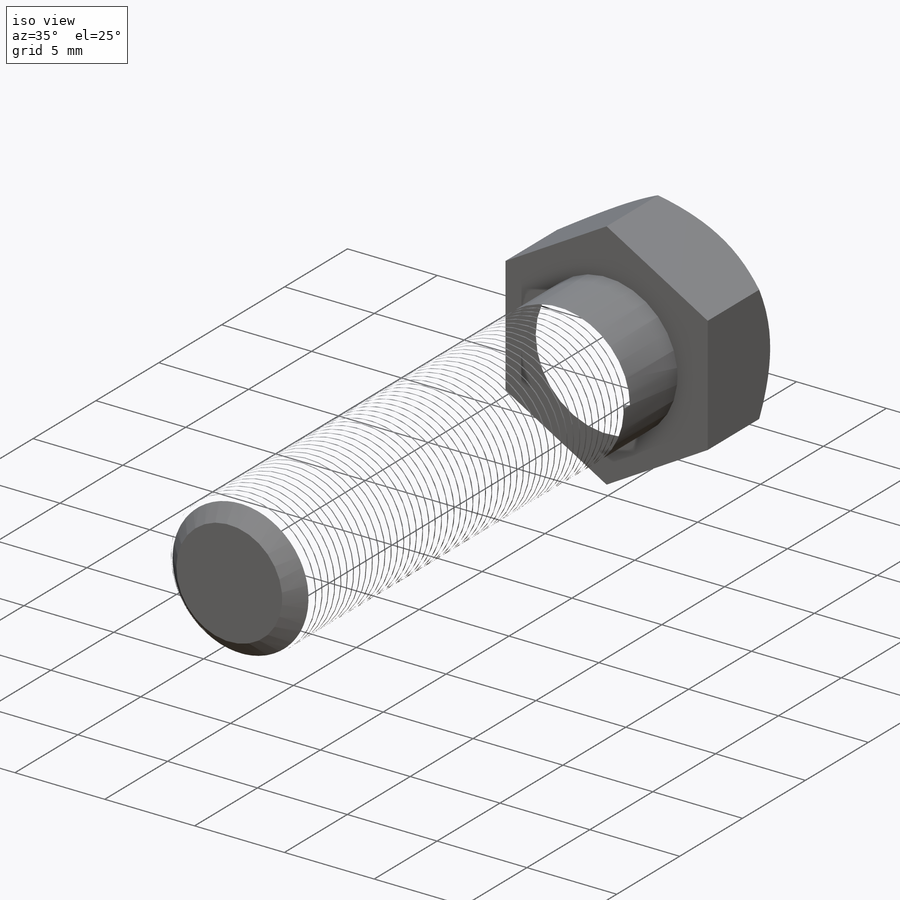
[diagram: iso view]
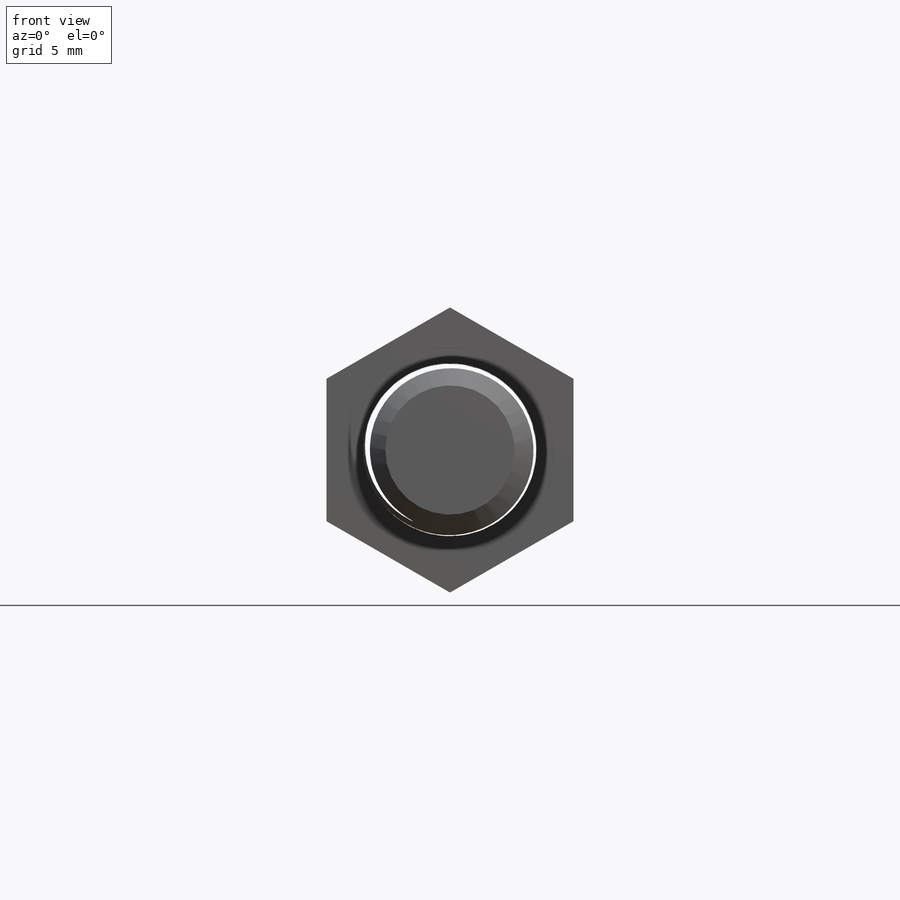
[diagram: front view]
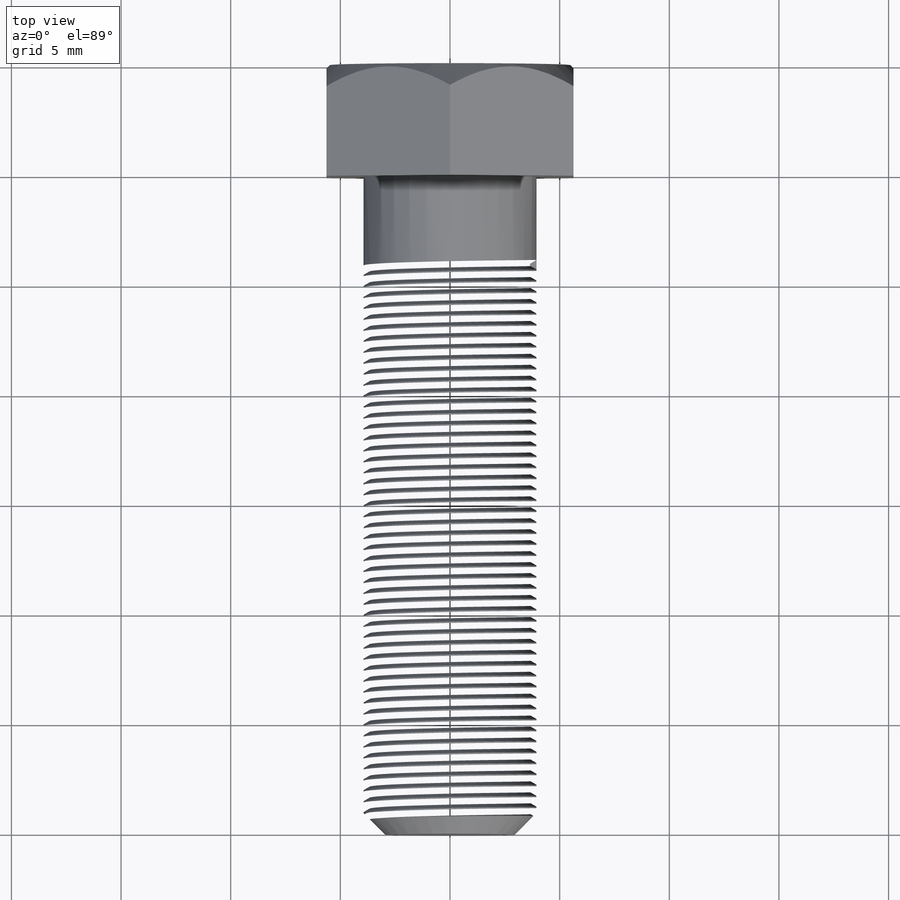
[diagram: top view]
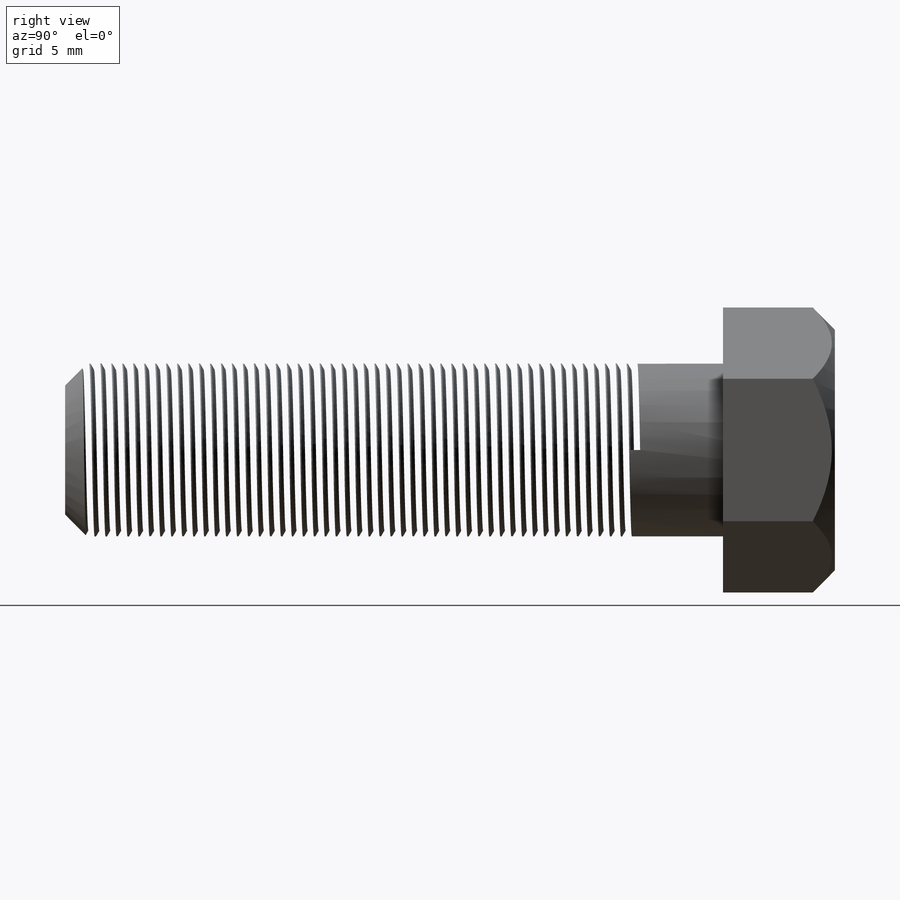
[diagram: right view]
SOLIDWORKS PART (.sldprt)
format: sldprt  version: not decoded by parser v0  size: 2,156,032 bytes
history: native  units: mm
features: sketch x6, plane x3, extrude x2, chamfer x2, material x1, cut_extrude x1, helix x1, sweep x1 (+8 scaffold rows collapsed)
feature tree (25):
  scaffold x8  (default folders/planes/origin — collapsed)
  material  "Material <sin especificar>"
  plane  "Alzado"
  plane  "Planta"
  plane  "Vista lateral"
  sketch  "Croquis2"  dims[D=13.0mm]
  extrude  "Saliente-Extruir1"  Depth=5.1mm H=5.1mm
  chamfer  "Chaflán1"  Distance=1.0062mm Angle=45deg
  sketch  "Croquis3"
  cut_extrude  "Cortar-Extruir1"  [1 undecoded]
  sketch  "Croquis4"  dims[Dr=~7.89175mm]
  extrude  "Saliente-Extruir2"  Depth=30mm L=30mm
  sketch  "Croquis5"  dims[Dint=7.134mm]
  helix  "Hélice/Espiral1"  Pitch=26mm Paso=0.5mm
  sketch  "Croquis6"  dims[Dn=8.0mm]
  chamfer  "Chaflán2"  Distance=1mm Angle=45deg
  sketch  "Croquis7"  dims[Paso=0.499mm Hp=~0.360112mm]
  sweep  "Cortar-Barrer1"
decode coverage: 10 of 13 modeling features carry decoded parameters
note: ~ marks probable driven/reference dimensions
note: 1 parameter value undecoded
note: suppression state not decoded; provenance and decode notes live in map.json
